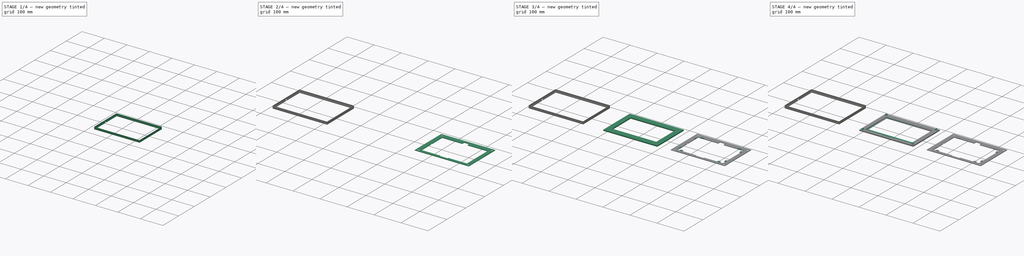
[diagram: build sequence overview — one tinted view per stage of 4, left to right]
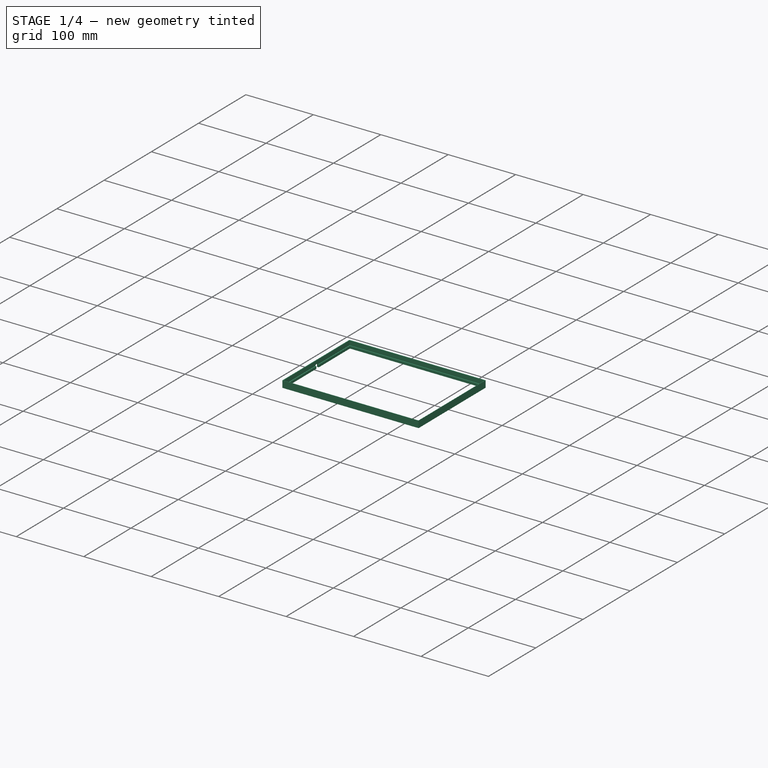
[diagram: stage 1 of 4 — iso view after this stage's code; geometry added in this stage tinted green]
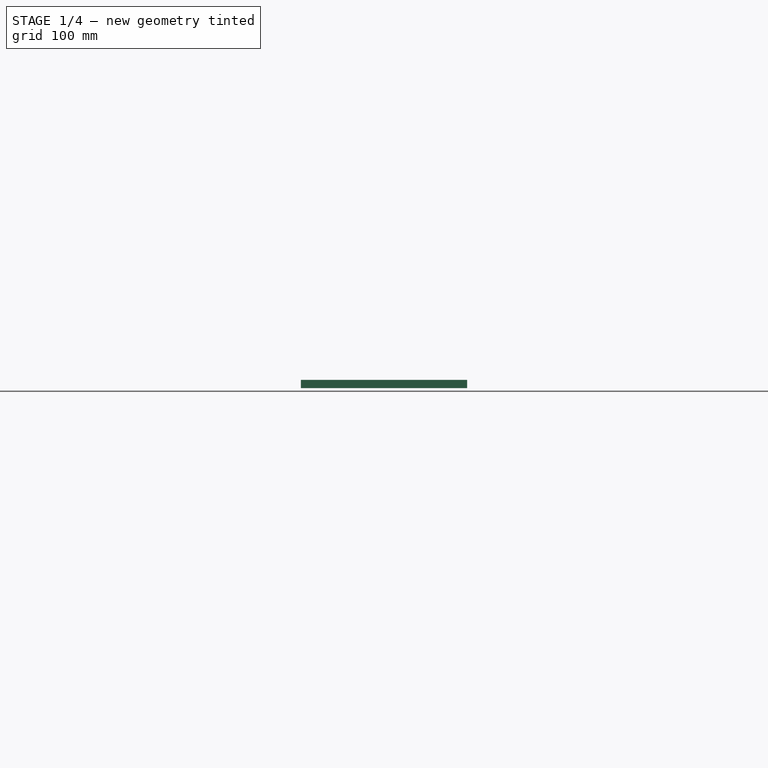
[diagram: stage 1 of 4 — front view after this stage's code; geometry added in this stage tinted green]
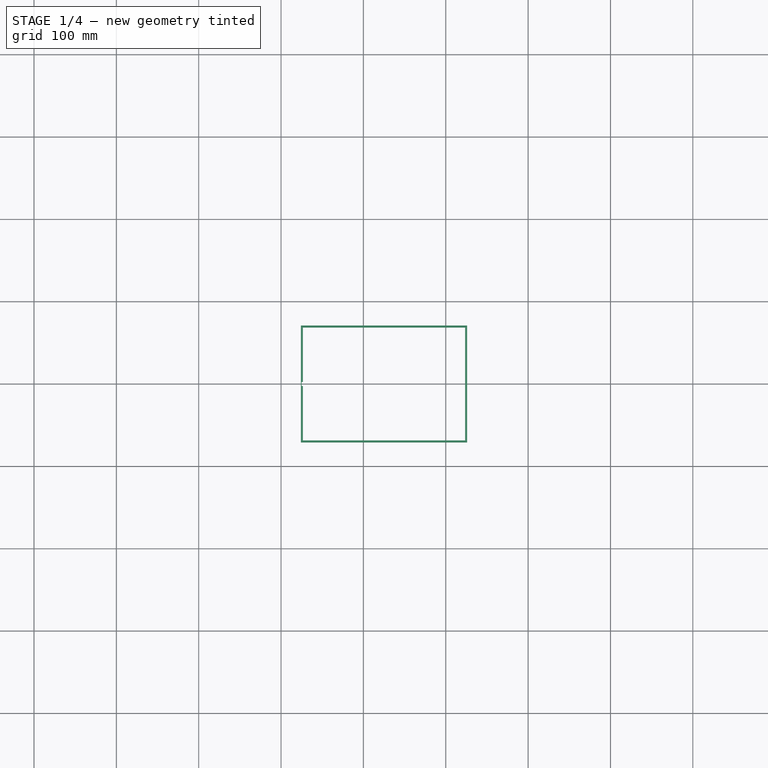
[diagram: stage 1 of 4 — top view after this stage's code; geometry added in this stage tinted green]
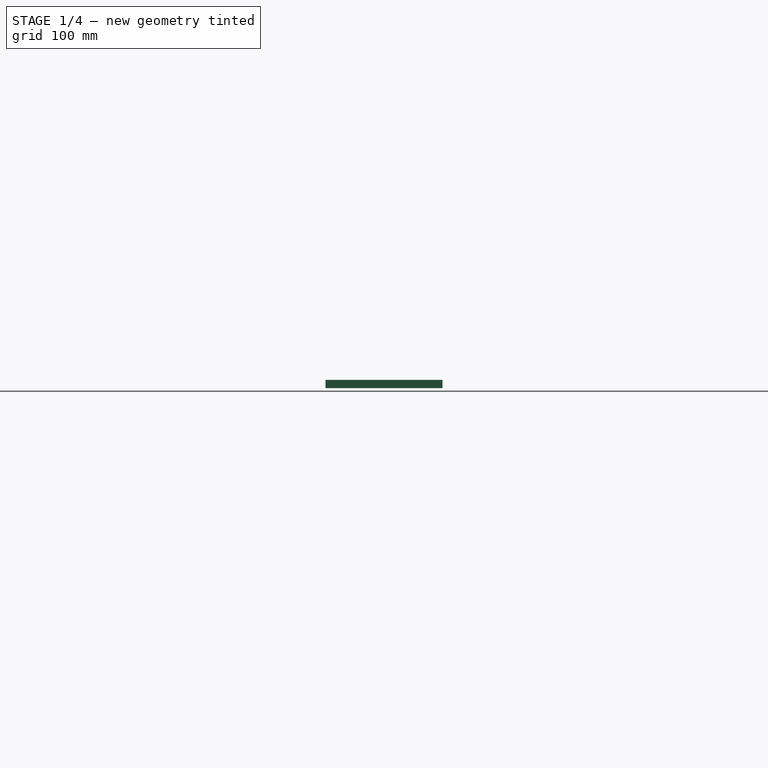
[diagram: stage 1 of 4 — right view after this stage's code; geometry added in this stage tinted green]
FCSTD DOCUMENT  (FreeCAD 1.0R39109 (Git))
Label: RevK75Bezel
License: All rights reserved
LicenseURL: https://en.wikipedia.org/wiki/All_rights_reserved
objects: Sketcher::SketchObject×10, PartDesign::Pad×5, PartDesign::Pocket×5, PartDesign::Body×3, PartDesign::Plane×1, PartDesign::Chamfer×1, PartDesign::Fillet×1
note: 60 computed .brp shape members not serialized (recipe doc carries the construction recipe); baked Part::Feature solids carry a one-line shape summary decoded from their .brp

FEATURE [PartDesign::Body] Body001  label="FrameBack"
  AllowCompound = false
  Group = -> [Sketch005,Pad002,Sketch006,Pocket001,Sketch007,Pocket002,Sketch008,Pad003,Fillet]
  Origin = -> Origin001
  Tip = -> Fillet
FEATURE [Sketcher::SketchObject] Sketch009  label="SurroundBaseS"
  ArcFitTolerance = 1e-06
  AttachmentSupport = -> [XY_Plane002]
  FullyConstrained = true
  MakeInternals = false
  MapMode = 5
  sketch-geometry (10):
    g0: LineSegment StartX=-376 StartY=71 StartZ=0 EndX=-376 EndY=-71 EndZ=0
    g1: LineSegment StartX=-376 StartY=-71 StartZ=0 EndX=-174 EndY=-71 EndZ=0
    g2: LineSegment StartX=-174 StartY=-71 StartZ=0 EndX=-174 EndY=71 EndZ=0
    g3: LineSegment StartX=-174 StartY=71 StartZ=0 EndX=-376 EndY=71 EndZ=0
    g4: GeomPoint [constr] X=-275 Y=0 Z=0
    g5: LineSegment StartX=-373.5 StartY=68.5 StartZ=0 EndX=-373.5 EndY=-68.5 EndZ=0
    g6: LineSegment StartX=-373.5 StartY=-68.5 StartZ=0 EndX=-176.5 EndY=-68.5 EndZ=0
    g7: LineSegment StartX=-176.5 StartY=-68.5 StartZ=0 EndX=-176.5 EndY=68.5 EndZ=0
    g8: LineSegment StartX=-176.5 StartY=68.5 StartZ=0 EndX=-373.5 EndY=68.5 EndZ=0
    g9: GeomPoint [constr] X=-275 Y=0 Z=0
  constraints (25):
    c: Coincident(g0,g1)
    c: Coincident(g1,g2)
    c: Coincident(g2,g3)
    c: Coincident(g3,g0)
    c: Vertical(g0)
    c: Vertical(g2)
    c: Horizontal(g1)
    c: Horizontal(g3)
    c: Symmetric(g2,g0,g4)
    c: PointOnObject(g4,g-1)
    c: DistanceX(g3,g3) = 202
    c: DistanceY(g0,g0) = 142
    c: DistanceX(g4,g-1) = 275
    c: Coincident(g5,g6)
    c: Coincident(g6,g7)
    c: Coincident(g7,g8)
    c: Coincident(g8,g5)
    c: Vertical(g5)
    c: Vertical(g7)
    c: Horizontal(g6)
    c: Horizontal(g8)
    c: Symmetric(g7,g5,g9)
    c: Coincident(g4,g9)
    c: DistanceX(g0,g5) = 2.5
    c: DistanceY(g0,g5) = -2.5
FEATURE [PartDesign::Pad] Pad004  label="SurroundBase"
  Direction = (0,0,1)
  Length = 10
  Length2 = 10
  Profile = -> Sketch009
  ReferenceAxis = -> Sketch009 [N_Axis]
  Refine = true
  Suppressed = false
  Type = 0
FEATURE [Sketcher::SketchObject] Sketch010  label="SurroundInsetS"
  ArcFitTolerance = 1e-06
  AttachmentSupport = -> [Pad004]
  ExternalGeometry = -> [Pad004]
  FullyConstrained = true
  MakeInternals = false
  MapMode = 5
  Placement = pos=(0,0,10) rot=(0,0,1;0rad)
  sketch-geometry (10):
    g0: LineSegment StartX=-375 StartY=70 StartZ=0 EndX=-375 EndY=-70.5 EndZ=0
    g1: LineSegment StartX=-375 StartY=-70.5 StartZ=0 EndX=-174.5 EndY=-70.5 EndZ=0
    g2: LineSegment StartX=-174.5 StartY=-70.5 StartZ=0 EndX=-174.5 EndY=70 EndZ=0
    g3: LineSegment StartX=-174.5 StartY=70 StartZ=0 EndX=-375 EndY=70 EndZ=0
    g4: GeomPoint [constr] X=-274.75 Y=-0.25 Z=0
    g5: LineSegment StartX=-373.5 StartY=68.5 StartZ=0 EndX=-373.5 EndY=-68.5 EndZ=0
    g6: LineSegment StartX=-373.5 StartY=-68.5 StartZ=0 EndX=-176.5 EndY=-68.5 EndZ=0
    g7: LineSegment StartX=-176.5 StartY=-68.5 StartZ=0 EndX=-176.5 EndY=68.5 EndZ=0
    g8: LineSegment StartX=-176.5 StartY=68.5 StartZ=0 EndX=-373.5 EndY=68.5 EndZ=0
    g9: GeomPoint [constr] X=-275 Y=3e-15 Z=0
  constraints (24):
    c: Coincident(g0,g1)
    c: Coincident(g1,g2)
    c: Coincident(g2,g3)
    c: Coincident(g3,g0)
    c: Vertical(g0)
    c: Vertical(g2)
    c: Horizontal(g1)
    c: Horizontal(g3)
    c: Symmetric(g2,g0,g4)
    c: Coincident(g5,g6)
    c: Coincident(g6,g7)
    c: Coincident(g7,g8)
    c: Coincident(g8,g5)
    c: Vertical(g5)
    c: Vertical(g7)
    c: Horizontal(g6)
    c: Horizontal(g8)
    c: Symmetric(g7,g5,g9)
    c: Coincident(g5,g-4)
    c: Coincident(g6,g-6)
    c: DistanceX(g5,g0) = -1.5
    c: DistanceY(g5,g0) = 1.5
    c: DistanceX(g6,g1) = 2
    c: DistanceY(g6,g1) = -2
FEATURE [PartDesign::Pocket] Pocket003  label="SurroundInset"
  BaseFeature = -> Pad004
  Direction = (0,0,-1)
  Length = 6.5
  Length2 = 5
  Profile = -> Sketch010
  ReferenceAxis = -> Sketch010 [N_Axis]
  Refine = true
  Suppressed = false
  Type = 0
FEATURE [Sketcher::SketchObject] Sketch011  label="CableHoleS"
  ArcFitTolerance = 1e-06
  AttachmentSupport = -> [Pocket003]
  ExternalGeometry = -> [Pocket003]
  FullyConstrained = true
  MakeInternals = false
  MapMode = 5
  Placement = pos=(-376,0,0) rot=(0.57735,-0.57735,-0.57735;2.0944rad)
  sketch-geometry (9):
    g0: LineSegment StartX=-2.5 StartY=3 StartZ=0 EndX=-2.5 EndY=0 EndZ=0
    g1: LineSegment StartX=-2.5 StartY=0 StartZ=0 EndX=2.5 EndY=0 EndZ=0
    g2: LineSegment StartX=2.5 StartY=0 StartZ=0 EndX=2.5 EndY=3 EndZ=0
    g3: LineSegment StartX=0.5 StartY=5 StartZ=0 EndX=-0.5 EndY=5 EndZ=0
    g4: GeomPoint [constr] X=0 Y=2.5 Z=0
    g5: ArcOfCircle CenterX=-0.5 CenterY=3 CenterZ=0 NormalX=0 NormalY=0 NormalZ=1 AngleXU=0 Radius=2 StartAngle=1.5708 EndAngle=3.14159
    g6: GeomPoint [constr] X=-2.5 Y=5 Z=0
    g7: ArcOfCircle CenterX=0.5 CenterY=3 CenterZ=0 NormalX=0 NormalY=0 NormalZ=1 AngleXU=0 Radius=2 StartAngle=1e-16 EndAngle=1.5708
    g8: GeomPoint [constr] X=2.5 Y=5 Z=0
  constraints (21):
    c: Coincident(g0,g1)
    c: Coincident(g1,g2)
    c: Vertical(g0)
    c: Vertical(g2)
    c: Horizontal(g1)
    c: Horizontal(g3)
    c: Symmetric(g2,g6,g4)
    c: PointOnObject(g4,g-2)
    c: PointOnObject(g0,g-3)
    c: Distance(g8,g6) = 5
    c: Distance(g2,g8) = 5
    c: PointOnObject(g6,g3)
    c: PointOnObject(g6,g0)
    c: Tangent(g3,g5) = -1.5708
    c: Tangent(g0,g5) = -1.5708
    c: PointOnObject(g8,g3)
    c: PointOnObject(g8,g2)
    c: Tangent(g3,g7) = -1.5708
    c: Tangent(g2,g7) = -1.5708
    c: Radius(g5) = 2
    c: Radius(g7) = 2
FEATURE [PartDesign::Pocket] Pocket004  label="CableHole"
  BaseFeature = -> Pocket003
  Direction = (1,0,0)
  Length = 5
  Length2 = 5
  Profile = -> Sketch011
  ReferenceAxis = -> Sketch011 [N_Axis]
  Refine = true
  Suppressed = false
  Type = 2
FEATURE [PartDesign::Body] Body002  label="FrameSurround"
  AllowCompound = false
  Group = -> [Sketch009,Pad004,Sketch010,Pocket003,Sketch011,Pocket004]
  Origin = -> Origin002
  Tip = -> Pocket004
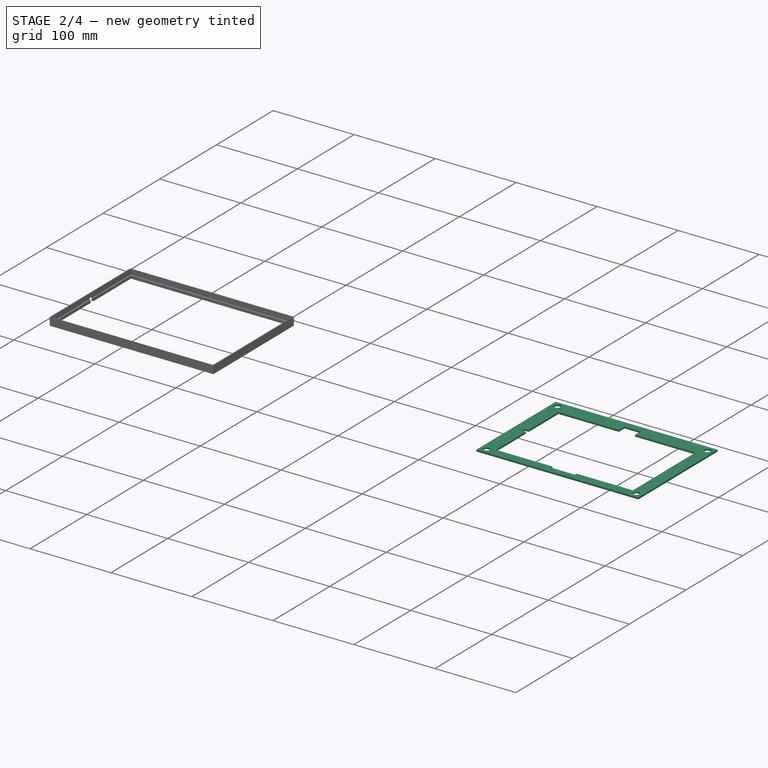
[diagram: stage 2 of 4 — iso view after this stage's code; geometry added in this stage tinted green]
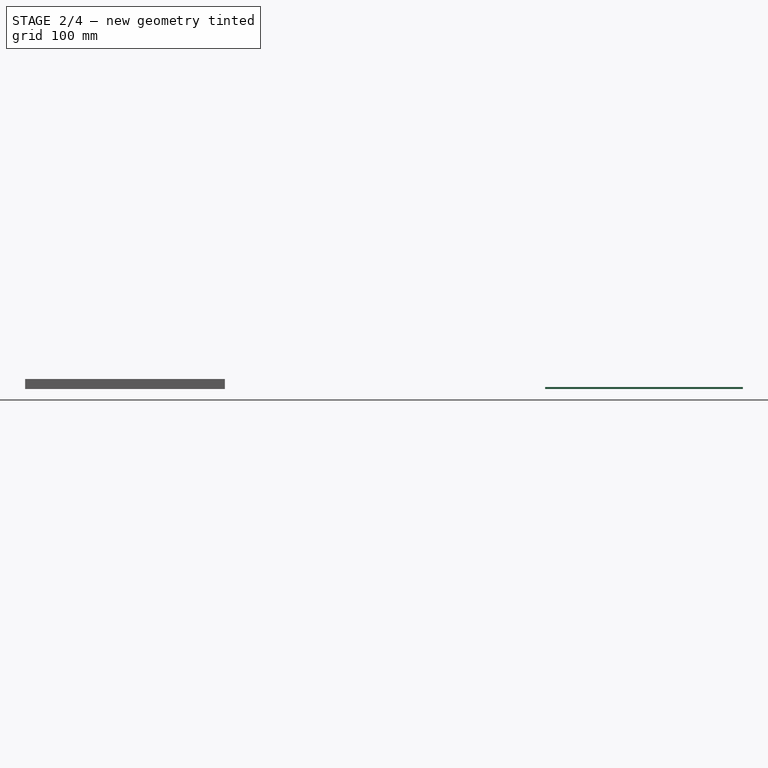
[diagram: stage 2 of 4 — front view after this stage's code; geometry added in this stage tinted green]
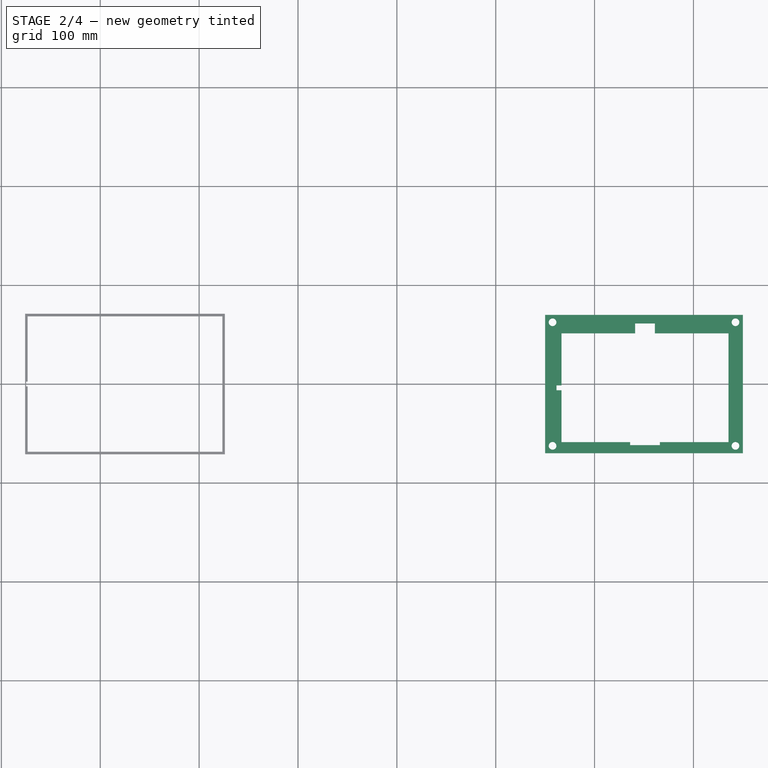
[diagram: stage 2 of 4 — top view after this stage's code; geometry added in this stage tinted green]
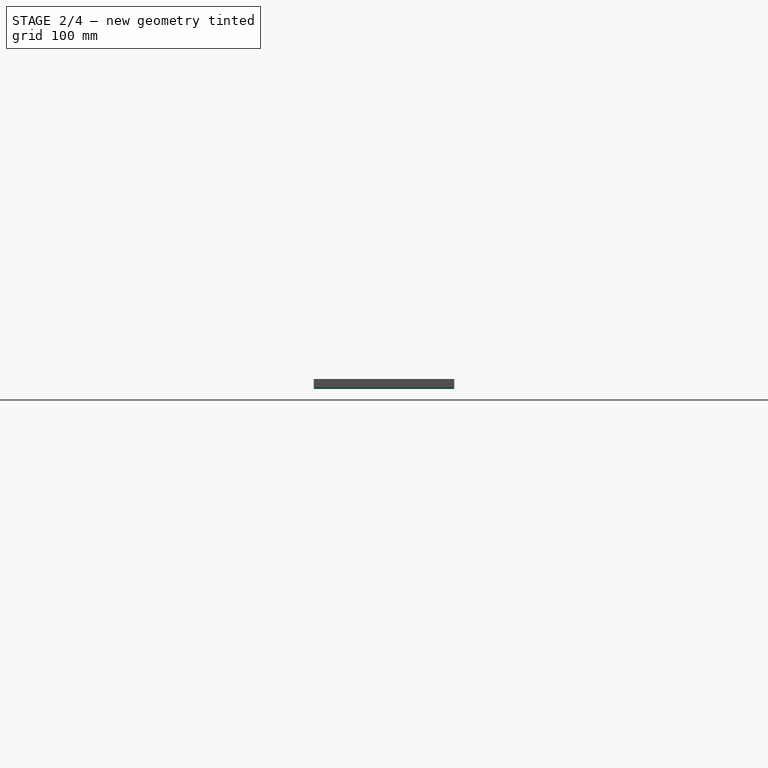
[diagram: stage 2 of 4 — right view after this stage's code; geometry added in this stage tinted green]
FEATURE [PartDesign::Body] Body  label="FrameFront"
  AllowCompound = false
  Group = -> [DatumPlane,Sketch,Pad,Sketch003,Pocket,Sketch004,Pad001,Chamfer]
  Origin = -> Origin
  Tip = -> Chamfer
FEATURE [Sketcher::SketchObject] Sketch005  label="BackBaseS"
  ArcFitTolerance = 1e-06
  AttachmentSupport = -> [XY_Plane001]
  FullyConstrained = true
  MakeInternals = false
  MapMode = 5
  sketch-geometry (5):
    g0: LineSegment StartX=150 StartY=70 StartZ=0 EndX=150 EndY=-70 EndZ=0
    g1: LineSegment StartX=150 StartY=-70 StartZ=0 EndX=350 EndY=-70 EndZ=0
    g2: LineSegment StartX=350 StartY=-70 StartZ=0 EndX=350 EndY=70 EndZ=0
    g3: LineSegment StartX=350 StartY=70 StartZ=0 EndX=150 EndY=70 EndZ=0
    g4: GeomPoint [constr] X=250 Y=0 Z=0
  constraints (13):
    c: Coincident(g0,g1)
    c: Coincident(g1,g2)
    c: Coincident(g2,g3)
    c: Coincident(g3,g0)
    c: Vertical(g0)
    c: Vertical(g2)
    c: Horizontal(g1)
    c: Horizontal(g3)
    c: Symmetric(g2,g0,g4)
    c: PointOnObject(g4,g-1)
    c: DistanceX(g3,g3) = 200
    c: DistanceY(g2,g2) = 140
    c: Distance(g4,g-2) = 250
FEATURE [PartDesign::Pad] Pad002  label="BackBase"
  Direction = (0,0,1)
  Length = 2
  Length2 = 10
  Profile = -> Sketch005
  ReferenceAxis = -> Sketch005 [N_Axis]
  Refine = true
  Suppressed = false
  Type = 0
FEATURE [Sketcher::SketchObject] Sketch006  label="ESP32RecessS"
  ArcFitTolerance = 1e-06
  AttachmentSupport = -> [Pad002]
  ExternalGeometry = -> [Pad002]
  FullyConstrained = true
  MakeInternals = false
  MapMode = 5
  Placement = pos=(0,0,2) rot=(0,0,1;0rad)
  sketch-geometry (17):
    g0: LineSegment StartX=335.5 StartY=-58.75 StartZ=0 EndX=335.5 EndY=51.25 EndZ=0
    g1: GeomPoint [constr] X=251 Y=-3.75 Z=0
    g2: LineSegment StartX=266 StartY=-58.75 StartZ=0 EndX=335.5 EndY=-58.75 EndZ=0
    g3: LineSegment StartX=166.5 StartY=-58.75 StartZ=0 EndX=236 EndY=-58.75 EndZ=0
    g4: LineSegment StartX=236 StartY=-58.75 StartZ=0 EndX=236 EndY=-61.75 EndZ=0
    g5: LineSegment StartX=236 StartY=-61.75 StartZ=0 EndX=266 EndY=-61.75 EndZ=0
    g6: LineSegment StartX=266 StartY=-61.75 StartZ=0 EndX=266 EndY=-58.75 EndZ=0
    g7: LineSegment StartX=335.5 StartY=51.25 StartZ=0 EndX=261 EndY=51.25 EndZ=0
    g8: LineSegment StartX=241 StartY=51.25 StartZ=0 EndX=166.5 EndY=51.25 EndZ=0
    g9: LineSegment StartX=241 StartY=61.25 StartZ=0 EndX=241 EndY=51.25 EndZ=0
    g10: LineSegment StartX=261 StartY=51.25 StartZ=0 EndX=261 EndY=61.25 EndZ=0
    g11: LineSegment StartX=261 StartY=61.25 StartZ=0 EndX=241 EndY=61.25 EndZ=0
    g12: LineSegment StartX=166.5 StartY=51.25 StartZ=0 EndX=166.5 EndY=-1.25 EndZ=0
    g13: LineSegment StartX=166.5 StartY=-1.25 StartZ=0 EndX=161.5 EndY=-1.25 EndZ=0
    g14: LineSegment StartX=161.5 StartY=-1.25 StartZ=0 EndX=161.5 EndY=-6.25 EndZ=0
    g15: LineSegment StartX=161.5 StartY=-6.25 StartZ=0 EndX=166.5 EndY=-6.25 EndZ=0
    g16: LineSegment StartX=166.5 StartY=-6.25 StartZ=0 EndX=166.5 EndY=-58.75 EndZ=0
  constraints (49):
    c: Coincident(g16,g3)
    c: Coincident(g2,g0)
    c: Coincident(g0,g7)
    c: Coincident(g8,g12)
    c: Vertical(g0)
    c: Symmetric(g0,g12,g1)
    c: Distance(g1,g-4) = 101
    c: Distance(g1,g-1) = 3.75
    c: DistanceY(g0,g0) = 110
    c: DistanceX(g8,g7) = 169
    c: Coincident(g6,g2)
    c: Horizontal(g2)
    c: Coincident(g3,g4)
    c: Horizontal(g3)
    c: Coincident(g4,g5)
    c: Coincident(g5,g6)
    c: Horizontal(g5)
    c: Vertical(g4)
    c: Vertical(g6)
    c: DistanceX(g5,g5) = 30
    c: Equal(g3,g2)
    c: Coincident(g7,g10)
    c: Horizontal(g7)
    c: Coincident(g9,g8)
    c: Horizontal(g8)
    c: Coincident(g11,g9)
    c: Coincident(g10,g11)
    c: Horizontal(g11)
    c: Vertical(g9)
    c: Vertical(g10)
    c: Equal(g8,g7)
    c: DistanceX(g11,g11) = 20
    c: Distance(g10,g10) = 10
    c: Distance(g6,g6) = 3
    c: DistanceY(g3,g2) = 0
    c: DistanceY(g8,g7) = 0
    c: Coincident(g12,g13)
    c: Vertical(g12)
    c: Coincident(g13,g14)
    c: Coincident(g14,g15)
    c: Vertical(g14)
    c: Coincident(g15,g16)
    c: Vertical(g16)
    c: Horizontal(g13)
    c: Horizontal(g15)
    c: Equal(g12,g16)
    c: Distance(g14,g14) = 5
    c: Distance(g15,g15) = 5
    c: DistanceX(g12,g15) = 0
FEATURE [PartDesign::Pocket] Pocket001  label="ESP32Recess"
  BaseFeature = -> Pad002
  Direction = (0,0,-1)
  Length = 5
  Length2 = 5
  Profile = -> Sketch006
  ReferenceAxis = -> Sketch006 [N_Axis]
  Refine = true
  Suppressed = false
  Type = 1
FEATURE [Sketcher::SketchObject] Sketch007  label="HolesS"
  ArcFitTolerance = 1e-06
  AttachmentSupport = -> [Pocket001]
  ExternalGeometry = -> [Pocket001]
  FullyConstrained = true
  MakeInternals = false
  MapMode = 5
  Placement = pos=(0,0,2) rot=(0,0,1;0rad)
  sketch-geometry (4):
    g0: Circle CenterX=157.5 CenterY=62.5 CenterZ=0 NormalX=0 NormalY=0 NormalZ=1 AngleXU=0 Radius=3.875
    g1: Circle CenterX=342.5 CenterY=62.5 CenterZ=0 NormalX=0 NormalY=0 NormalZ=1 AngleXU=0 Radius=3.875
    g2: Circle CenterX=342.5 CenterY=-62.5 CenterZ=0 NormalX=0 NormalY=0 NormalZ=1 AngleXU=0 Radius=3.875
    g3: Circle CenterX=157.5 CenterY=-62.5 CenterZ=0 NormalX=0 NormalY=0 NormalZ=1 AngleXU=0 Radius=3.875
  constraints (12):
    c: Diameter(g3) = 7.75
    c: Diameter(g2) = 7.75
    c: Diameter(g1) = 7.75
    c: Diameter(g0) = 7.75
    c: DistanceX(g0,g-4) = -7.5
    c: DistanceY(g0,g-4) = 7.5
    c: DistanceX(g1,g-5) = 7.5
    c: DistanceY(g1,g-5) = 7.5
    c: DistanceX(g3,g-6) = -7.5
    c: DistanceY(g3,g-6) = -7.5
    c: DistanceX(g2,g-6) = 7.5
    c: DistanceY(g2,g-6) = -7.5
FEATURE [PartDesign::Pocket] Pocket002  label="Holes"
  BaseFeature = -> Pocket001
  Direction = (0,0,-1)
  Length = 5
  Length2 = 5
  Profile = -> Sketch007
  ReferenceAxis = -> Sketch007 [N_Axis]
  Refine = true
  Suppressed = false
  Type = 1
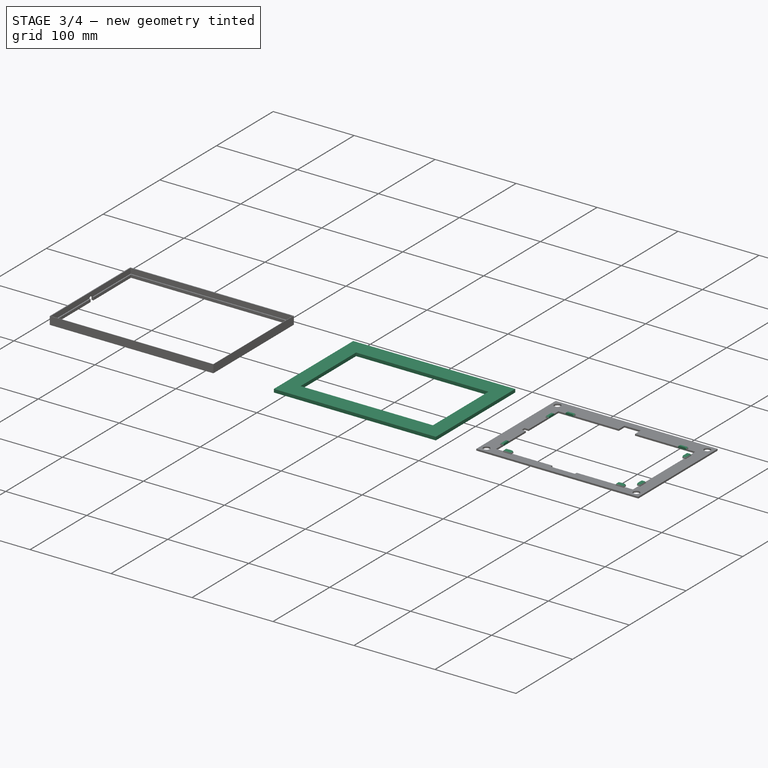
[diagram: stage 3 of 4 — iso view after this stage's code; geometry added in this stage tinted green]
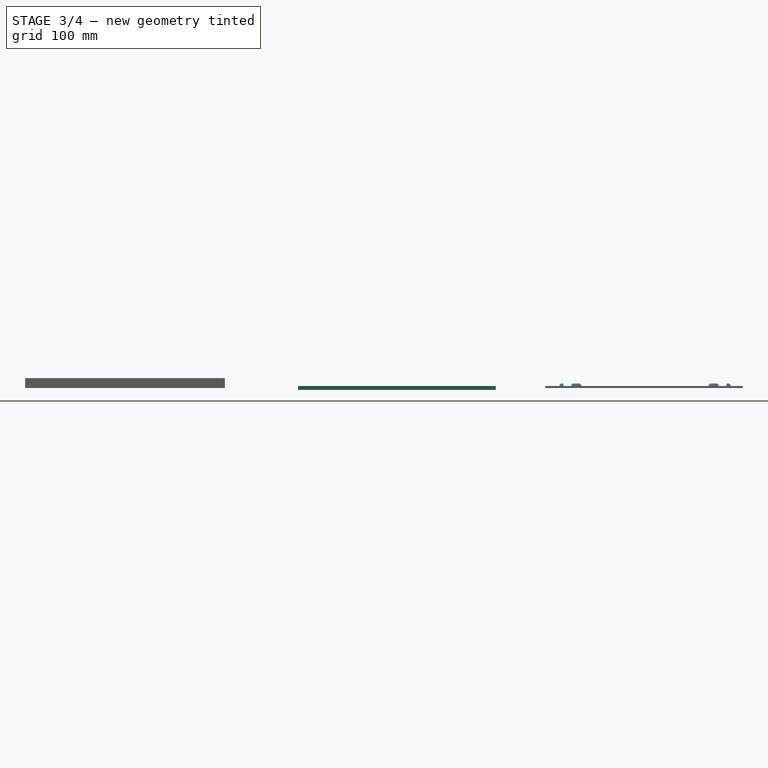
[diagram: stage 3 of 4 — front view after this stage's code; geometry added in this stage tinted green]
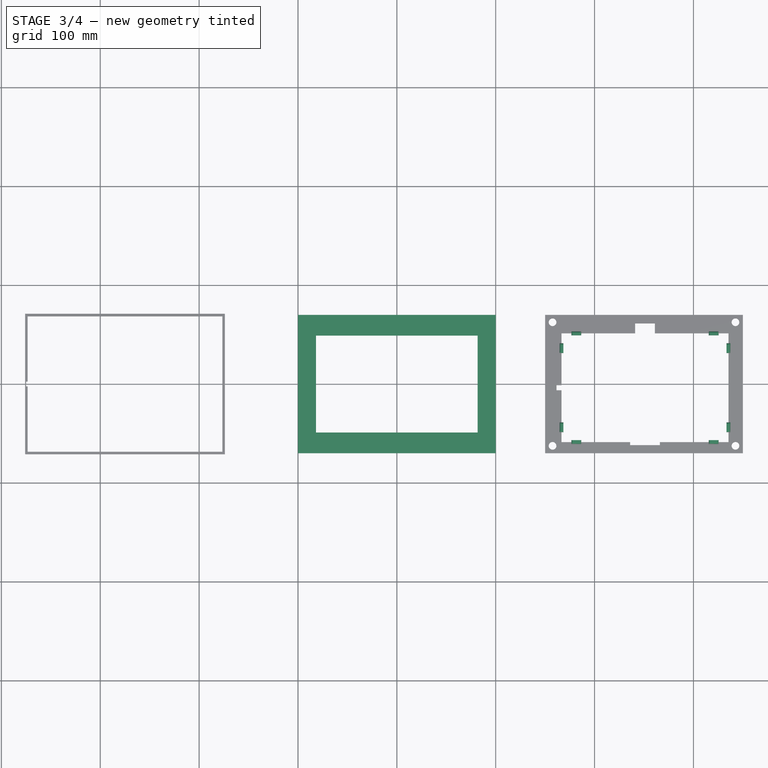
[diagram: stage 3 of 4 — top view after this stage's code; geometry added in this stage tinted green]
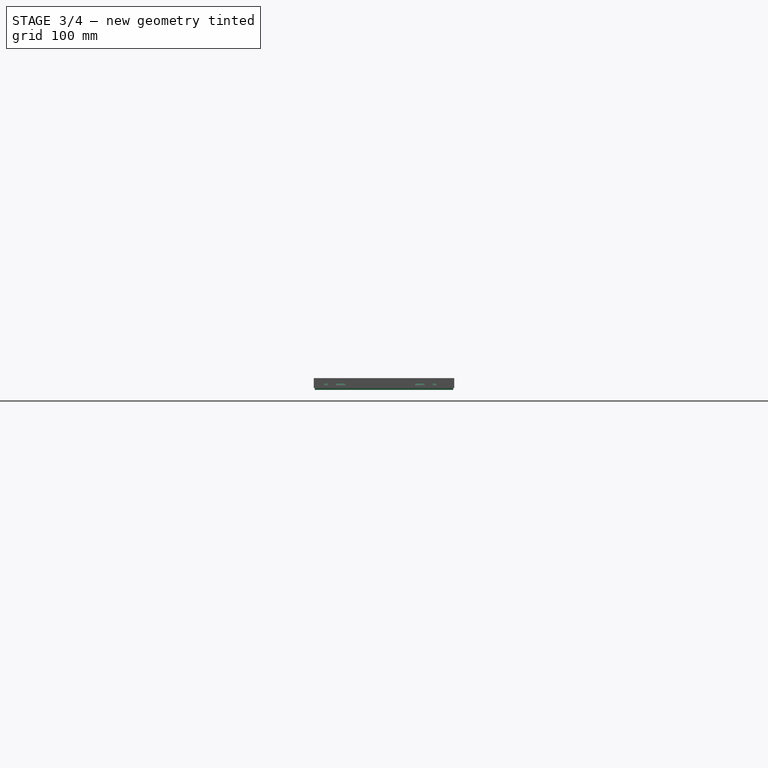
[diagram: stage 3 of 4 — right view after this stage's code; geometry added in this stage tinted green]
FEATURE [PartDesign::Plane] DatumPlane
  AttachmentSupport = -> [XY_Plane]
  Length = 233.466
  MapMode = 5
  ResizeMode = 0
  Width = 173.466
FEATURE [Sketcher::SketchObject] Sketch  label="FrontBaseS"
  ArcFitTolerance = 0
  AttachmentOffset = pos=(0,0,-2) rot=(0,0,1;0rad)
  AttachmentSupport = -> [DatumPlane]
  FullyConstrained = true
  MakeInternals = false
  MapMode = 5
  Placement = pos=(0,0,-2) rot=(0,0,1;0rad)
  sketch-geometry (10):
    g0: LineSegment StartX=-100 StartY=-70 StartZ=0 EndX=-100 EndY=70 EndZ=0
    g1: LineSegment StartX=-100 StartY=70 StartZ=0 EndX=100 EndY=70 EndZ=0
    g2: LineSegment StartX=100 StartY=70 StartZ=0 EndX=100 EndY=-70 EndZ=0
    g3: LineSegment StartX=100 StartY=-70 StartZ=0 EndX=-100 EndY=-70 EndZ=0
    g4: GeomPoint [constr] X=0 Y=0 Z=0
    g5: LineSegment StartX=-81.75 StartY=-49 StartZ=0 EndX=-81.75 EndY=49 EndZ=0
    g6: LineSegment StartX=-81.75 StartY=49 StartZ=0 EndX=81.75 EndY=49 EndZ=0
    g7: LineSegment StartX=81.75 StartY=49 StartZ=0 EndX=81.75 EndY=-49 EndZ=0
    g8: LineSegment StartX=81.75 StartY=-49 StartZ=0 EndX=-81.75 EndY=-49 EndZ=0
    g9: GeomPoint [constr] X=0 Y=0 Z=0
  constraints (24):
    c: Coincident(g0,g1)
    c: Coincident(g1,g2)
    c: Coincident(g2,g3)
    c: Coincident(g3,g0)
    c: Horizontal(g1)
    c: Horizontal(g3)
    c: Vertical(g0)
    c: Vertical(g2)
    c: Symmetric(g1,g0,g4)
    c: Coincident(g4,g-1)
    c: DistanceY(g0,g0) = 140  'Frame Height'
    c: DistanceX(g1,g1) = 200  'Frame Width'
    c: Coincident(g5,g6)
    c: Coincident(g6,g7)
    c: Coincident(g7,g8)
    c: Coincident(g8,g5)
    c: Horizontal(g6)
    c: Horizontal(g8)
    c: Vertical(g5)
    c: Vertical(g7)
    c: Symmetric(g6,g5,g9)
    c: Coincident(g9,g4)
    c: DistanceX(g6,g6) = 163.5  'OpeningWidth'
    c: DistanceY(g5,g5) = 98  'OpeningHeight'
FEATURE [PartDesign::Pad] Pad  label="FrontBase"
  Direction = (0,0,1)
  Length = 4
  Length2 = 10
  Profile = -> Sketch
  ReferenceAxis = -> Sketch [N_Axis]
  Suppressed = false
  Type = 0
FEATURE [Sketcher::SketchObject] Sketch008  label="HooksS"
  ArcFitTolerance = 1e-06
  AttachmentSupport = -> [Pocket002]
  ExternalGeometry = -> [Pocket002]
  FullyConstrained = true
  MakeInternals = false
  MapMode = 5
  Placement = pos=(0,0,2) rot=(0,0,1;0rad)
  sketch-geometry (40):
    g0: LineSegment StartX=176.5 StartY=53.25 StartZ=0 EndX=176.5 EndY=49.25 EndZ=0
    g1: LineSegment StartX=176.5 StartY=49.25 StartZ=0 EndX=186.5 EndY=49.25 EndZ=0
    g2: LineSegment StartX=186.5 StartY=49.25 StartZ=0 EndX=186.5 EndY=53.25 EndZ=0
    g3: LineSegment StartX=186.5 StartY=53.25 StartZ=0 EndX=176.5 EndY=53.25 EndZ=0
    g4: GeomPoint [constr] X=181.5 Y=51.25 Z=0
    g5: LineSegment StartX=164.5 StartY=41.25 StartZ=0 EndX=164.5 EndY=31.25 EndZ=0
    g6: LineSegment StartX=164.5 StartY=31.25 StartZ=0 EndX=168.5 EndY=31.25 EndZ=0
    g7: LineSegment StartX=168.5 StartY=31.25 StartZ=0 EndX=168.5 EndY=41.25 EndZ=0
    g8: LineSegment StartX=168.5 StartY=41.25 StartZ=0 EndX=164.5 EndY=41.25 EndZ=0
    g9: GeomPoint [constr] X=166.5 Y=36.25 Z=0
    g10: LineSegment StartX=164.5 StartY=-38.75 StartZ=0 EndX=164.5 EndY=-48.75 EndZ=0
    g11: LineSegment StartX=164.5 StartY=-48.75 StartZ=0 EndX=168.5 EndY=-48.75 EndZ=0
    g12: LineSegment StartX=168.5 StartY=-48.75 StartZ=0 EndX=168.5 EndY=-38.75 EndZ=0
    g13: LineSegment StartX=168.5 StartY=-38.75 StartZ=0 EndX=164.5 EndY=-38.75 EndZ=0
    g14: GeomPoint [constr] X=166.5 Y=-43.75 Z=0
    g15: LineSegment StartX=176.5 StartY=-56.75 StartZ=0 EndX=176.5 EndY=-60.75 EndZ=0
    g16: LineSegment StartX=176.5 StartY=-60.75 StartZ=0 EndX=186.5 EndY=-60.75 EndZ=0
    g17: LineSegment StartX=186.5 StartY=-60.75 StartZ=0 EndX=186.5 EndY=-56.75 EndZ=0
    g18: LineSegment StartX=186.5 StartY=-56.75 StartZ=0 EndX=176.5 EndY=-56.75 EndZ=0
    g19: GeomPoint [constr] X=181.5 Y=-58.75 Z=0
    g20: LineSegment StartX=315.5 StartY=-56.75 StartZ=0 EndX=315.5 EndY=-60.75 EndZ=0
    g21: LineSegment StartX=315.5 StartY=-60.75 StartZ=0 EndX=325.5 EndY=-60.75 EndZ=0
    g22: LineSegment StartX=325.5 StartY=-60.75 StartZ=0 EndX=325.5 EndY=-56.75 EndZ=0
    g23: LineSegment StartX=325.5 StartY=-56.75 StartZ=0 EndX=315.5 EndY=-56.75 EndZ=0
    g24: GeomPoint [constr] X=320.5 Y=-58.75 Z=0
    g25: LineSegment StartX=333.5 StartY=-38.75 StartZ=0 EndX=333.5 EndY=-48.75 EndZ=0
    g26: LineSegment StartX=333.5 StartY=-48.75 StartZ=0 EndX=337.5 EndY=-48.75 EndZ=0
    g27: LineSegment StartX=337.5 StartY=-48.75 StartZ=0 EndX=337.5 EndY=-38.75 EndZ=0
    g28: LineSegment StartX=337.5 StartY=-38.75 StartZ=0 EndX=333.5 EndY=-38.75 EndZ=0
    g29: GeomPoint [constr] X=335.5 Y=-43.75 Z=0
    g30: LineSegment StartX=333.5 StartY=41.25 StartZ=0 EndX=333.5 EndY=31.25 EndZ=0
    g31: LineSegment StartX=333.5 StartY=31.25 StartZ=0 EndX=337.5 EndY=31.25 EndZ=0
    g32: LineSegment StartX=337.5 StartY=31.25 StartZ=0 EndX=337.5 EndY=41.25 EndZ=0
    g33: LineSegment StartX=337.5 StartY=41.25 StartZ=0 EndX=333.5 EndY=41.25 EndZ=0
    g34: GeomPoint [constr] X=335.5 Y=36.25 Z=0
    g35: LineSegment StartX=315.5 StartY=53.25 StartZ=0 EndX=315.5 EndY=49.25 EndZ=0
    g36: LineSegment StartX=315.5 StartY=49.25 StartZ=0 EndX=325.5 EndY=49.25 EndZ=0
    g37: LineSegment StartX=325.5 StartY=49.25 StartZ=0 EndX=325.5 EndY=53.25 EndZ=0
    g38: LineSegment StartX=325.5 StartY=53.25 StartZ=0 EndX=315.5 EndY=53.25 EndZ=0
    g39: GeomPoint [constr] X=320.5 Y=51.25 Z=0
  constraints (104):
    c: Coincident(g0,g1)
    c: Coincident(g1,g2)
    c: Coincident(g2,g3)
    c: Coincident(g3,g0)
    c: Vertical(g0)
    c: Vertical(g2)
    c: Horizontal(g1)
    c: Horizontal(g3)
    c: Symmetric(g2,g0,g4)
    c: Coincident(g5,g6)
    c: Coincident(g6,g7)
    c: Coincident(g7,g8)
    c: Coincident(g8,g5)
    c: Vertical(g5)
    c: Vertical(g7)
    c: Horizontal(g6)
    c: Horizontal(g8)
    c: Symmetric(g7,g5,g9)
    c: Coincident(g10,g11)
    c: Coincident(g11,g12)
    c: Coincident(g12,g13)
    c: Coincident(g13,g10)
    c: Vertical(g10)
    c: Vertical(g12)
    c: Horizontal(g11)
    c: Horizontal(g13)
    c: Symmetric(g12,g10,g14)
    c: Coincident(g15,g16)
    c: Coincident(g16,g17)
    c: Coincident(g17,g18)
    c: Coincident(g18,g15)
    c: Vertical(g15)
    c: Vertical(g17)
    c: Horizontal(g16)
    c: Horizontal(g18)
    c: Symmetric(g17,g15,g19)
    c: Coincident(g20,g21)
    c: Coincident(g21,g22)
    c: Coincident(g22,g23)
    c: Coincident(g23,g20)
    c: Vertical(g20)
    c: Vertical(g22)
    c: Horizontal(g21)
    c: Horizontal(g23)
    c: Symmetric(g22,g20,g24)
    c: Coincident(g25,g26)
    c: Coincident(g26,g27)
    c: Coincident(g27,g28)
    c: Coincident(g28,g25)
    c: Vertical(g25)
    c: Vertical(g27)
    c: Horizontal(g26)
    c: Horizontal(g28)
    c: Symmetric(g27,g25,g29)
    c: Coincident(g30,g31)
    c: Coincident(g31,g32)
    c: Coincident(g32,g33)
    c: Coincident(g33,g30)
    c: Vertical(g30)
    c: Vertical(g32)
    c: Horizontal(g31)
    c: Horizontal(g33)
    c: Symmetric(g32,g30,g34)
    c: Coincident(g35,g36)
    c: Coincident(g36,g37)
    c: Coincident(g37,g38)
    c: Coincident(g38,g35)
    c: Vertical(g35)
    c: Vertical(g37)
    c: Horizontal(g36)
    c: Horizontal(g38)
    c: Symmetric(g37,g35,g39)
    c: DistanceX(g3,g3) = 10
    c: DistanceY(g5,g5) = 10
    c: DistanceY(g10,g10) = 10
    c: DistanceX(g16,g16) = 10
    c: DistanceX(g21,g21) = 10
    c: DistanceY(g27,g27) = 10
    c: DistanceY(g32,g32) = 10
    c: DistanceX(g38,g38) = 10
    c: Distance(g35,g35) = 4
    c: Distance(g31,g31) = 4
    c: Distance(g28,g28) = 4
    c: Distance(g20,g20) = 4
    c: Distance(g17,g17) = 4
    c: Distance(g13,g13) = 4
    c: Distance(g6,g6) = 4
    c: Distance(g2,g2) = 4
    c: Distance(g24,g-3) = 15
    c: Distance(g39,g-3) = 15
    c: PointOnObject(g34,g-3)
    c: PointOnObject(g29,g-3)
    c: PointOnObject(g19,g-6)
    c: PointOnObject(g24,g-7)
    c: PointOnObject(g4,g-4)
    c: PointOnObject(g39,g-5)
    c: DistanceY(g34,g-5) = 15
    c: DistanceY(g9,g-4) = 15
    c: DistanceY(g-6,g14) = 15
    c: DistanceY(g-7,g29) = 15
    c: PointOnObject(g9,g-8)
    c: PointOnObject(g14,g-9)
    c: DistanceX(g-9,g19) = 15
    c: DistanceX(g-8,g4) = 15
FEATURE [PartDesign::Pad] Pad003  label="Hooks"
  BaseFeature = -> Pocket002
  Direction = (0,0,1)
  Length = 2.5
  Length2 = 10
  Profile = -> Sketch008
  ReferenceAxis = -> Sketch008 [N_Axis]
  Refine = true
  Suppressed = false
  Type = 0
FEATURE [PartDesign::Fillet] Fillet
  Base = -> Pad003 [Edge145,Edge148,Edge143,Edge139,Edge136,Edge134,Edge130,Edge127,Edge125,Edge121,Edge118,Edge116,Edge184,Edge181,Edge179,Edge175,Edge172,Edge170,Edge166,Edge163,Edge161,Edge157,Edge154,Edge152]
  BaseFeature = -> Pad003
  Radius = 2
  Refine = true
  SupportTransform = false
  Suppressed = false
  UseAllEdges = false
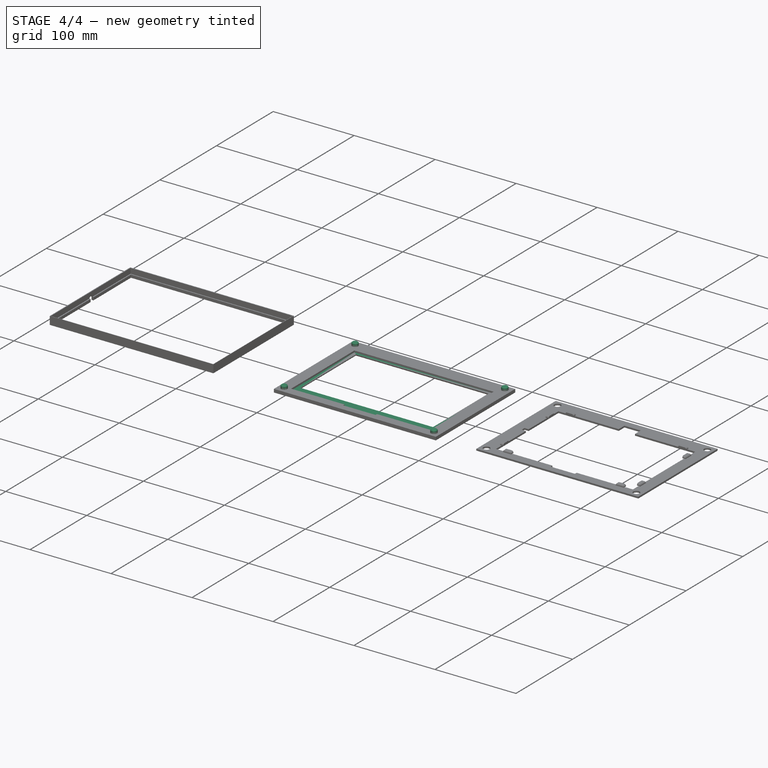
[diagram: stage 4 of 4 — iso view after this stage's code; geometry added in this stage tinted green]
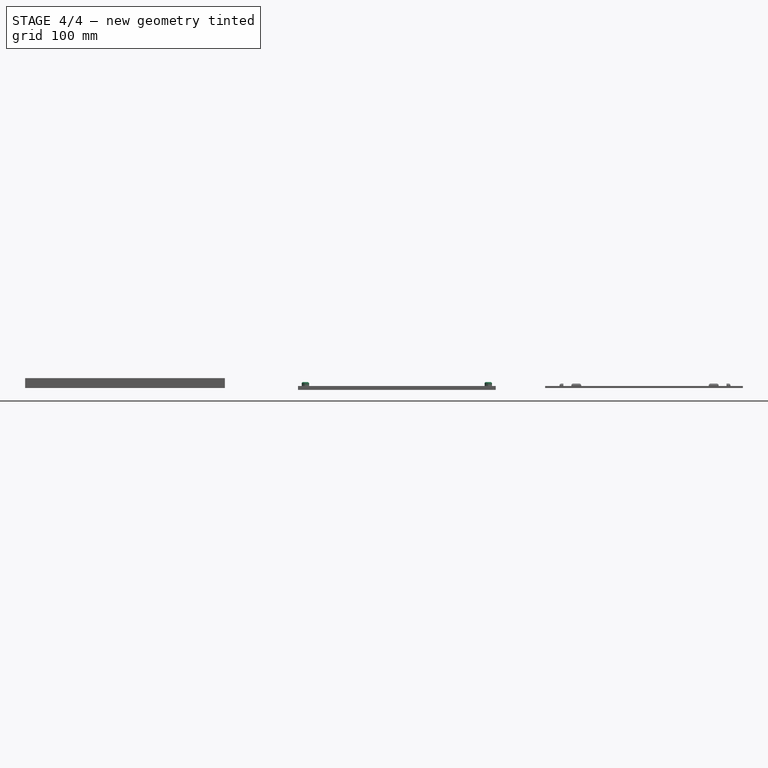
[diagram: stage 4 of 4 — front view after this stage's code; geometry added in this stage tinted green]
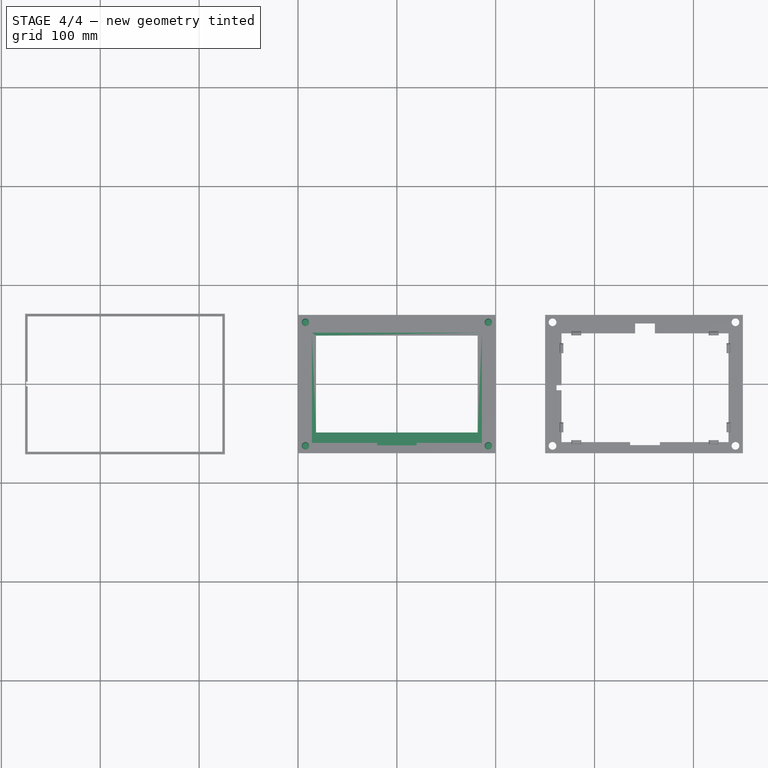
[diagram: stage 4 of 4 — top view after this stage's code; geometry added in this stage tinted green]
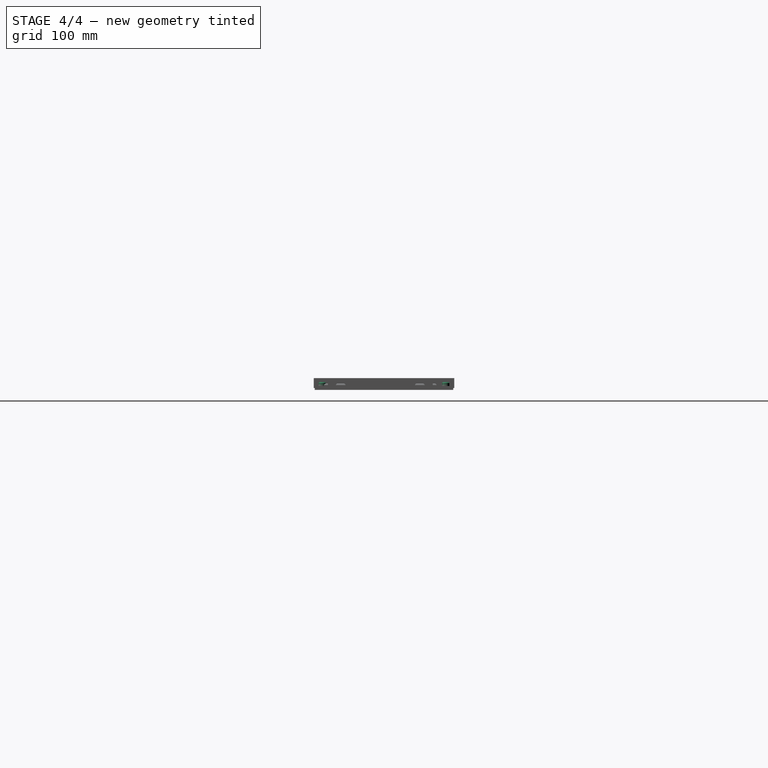
[diagram: stage 4 of 4 — right view after this stage's code; geometry added in this stage tinted green]
FEATURE [Sketcher::SketchObject] Sketch003  label="DisplayRecessS"
  ArcFitTolerance = 0
  AttachmentSupport = -> [Pad]
  FullyConstrained = true
  MakeInternals = false
  MapMode = 5
  Placement = pos=(0,0,2) rot=(0,0,1;0rad)
  sketch-geometry (9):
    g0: LineSegment StartX=-86 StartY=52 StartZ=0 EndX=-86 EndY=-59.5 EndZ=0
    g1: LineSegment StartX=86 StartY=-59.5 StartZ=0 EndX=86 EndY=52 EndZ=0
    g2: LineSegment StartX=86 StartY=52 StartZ=0 EndX=-86 EndY=52 EndZ=0
    g3: GeomPoint [constr] X=0 Y=-3.75 Z=0
    g4: LineSegment StartX=20 StartY=-59.5 StartZ=0 EndX=86 EndY=-59.5 EndZ=0
    g5: LineSegment StartX=-86 StartY=-59.5 StartZ=0 EndX=-20 EndY=-59.5 EndZ=0
    g6: LineSegment StartX=-20 StartY=-59.5 StartZ=0 EndX=-20 EndY=-62 EndZ=0
    g7: LineSegment StartX=-20 StartY=-62 StartZ=0 EndX=20 EndY=-62 EndZ=0
    g8: LineSegment StartX=20 StartY=-62 StartZ=0 EndX=20 EndY=-59.5 EndZ=0
  constraints (25):
    c: Coincident(g0,g5)
    c: Coincident(g4,g1)
    c: Coincident(g1,g2)
    c: Coincident(g2,g0)
    c: Horizontal(g2)
    c: Vertical(g0)
    c: Vertical(g1)
    c: Symmetric(g4,g0,g3)
    c: DistanceX(g2,g2) = 172  'RecessWidth'
    c: DistanceY(g0,g0) = 111.5  'RecessHeight'
    c: DistanceX(g-1,g3) = 0  'RecessXOffset'
    c: DistanceY(g-1,g3) = -3.75  'RecessYOffset'
    c: Coincident(g8,g4)
    c: Horizontal(g4)
    c: Coincident(g5,g6)
    c: Horizontal(g5)
    c: DistanceX(g6,g8) = 40
    c: Distance(g5,g-2) = 20
    c: Coincident(g6,g7)
    c: Coincident(g7,g8)
    c: Horizontal(g7)
    c: Vertical(g6)
    c: Vertical(g8)
    c: DistanceY(g8,g8) = 2.5
    c: DistanceY(g4,g5) = 0
FEATURE [PartDesign::Pocket] Pocket  label="DisplayRecess"
  BaseFeature = -> Pad
  Direction = (0,0,-1)
  Length = 2
  Length2 = 5
  Profile = -> Sketch003
  ReferenceAxis = -> Sketch003 [N_Axis]
  Refine = true
  Suppressed = false
  Type = 0
FEATURE [Sketcher::SketchObject] Sketch004  label="PegsS"
  ArcFitTolerance = 1e-06
  AttachmentSupport = -> [Pocket]
  ExternalGeometry = -> [Pocket]
  FullyConstrained = true
  MakeInternals = false
  MapMode = 5
  Placement = pos=(0,0,2) rot=(0,0,1;0rad)
  sketch-geometry (4):
    g0: Circle CenterX=-92.5 CenterY=62.5 CenterZ=0 NormalX=0 NormalY=0 NormalZ=1 AngleXU=0 Radius=3.75
    g1: Circle CenterX=92.5 CenterY=62.5 CenterZ=0 NormalX=0 NormalY=0 NormalZ=1 AngleXU=0 Radius=3.75
    g2: Circle CenterX=92.5 CenterY=-62.5 CenterZ=0 NormalX=0 NormalY=0 NormalZ=1 AngleXU=0 Radius=3.75
    g3: Circle CenterX=-92.5 CenterY=-62.5 CenterZ=0 NormalX=0 NormalY=0 NormalZ=1 AngleXU=0 Radius=3.75
  constraints (12):
    c: DistanceX(g-5,g3) = 7.5
    c: DistanceY(g-5,g3) = 7.5
    c: Diameter(g3) = 7.5
    c: DistanceX(g2,g-6) = 7.5
    c: DistanceY(g2,g-6) = -7.5
    c: Diameter(g2) = 7.5
    c: Diameter(g0) = 7.5
    c: Diameter(g1) = 7.5
    c: DistanceX(g0,g-4) = -7.5
    c: DistanceY(g0,g-4) = 7.5
    c: DistanceX(g1,g-6) = 7.5
    c: DistanceY(g1,g-6) = 7.5
FEATURE [PartDesign::Pad] Pad001  label="Pegs"
  BaseFeature = -> Pocket
  Direction = (0,0,1)
  Length = 4
  Length2 = 10
  Profile = -> Sketch004
  ReferenceAxis = -> Sketch004 [N_Axis]
  Refine = true
  Suppressed = false
  Type = 0
FEATURE [PartDesign::Chamfer] Chamfer
  Angle = 45
  Base = -> Pad001 [Edge13,Edge12,Edge14,Edge15,Edge58,Edge38,Edge40,Edge60]
  BaseFeature = -> Pad001
  ChamferType = 0
  FlipDirection = false
  Refine = true
  Size = 1
  Size2 = 1
  SupportTransform = false
  Suppressed = false
  UseAllEdges = false
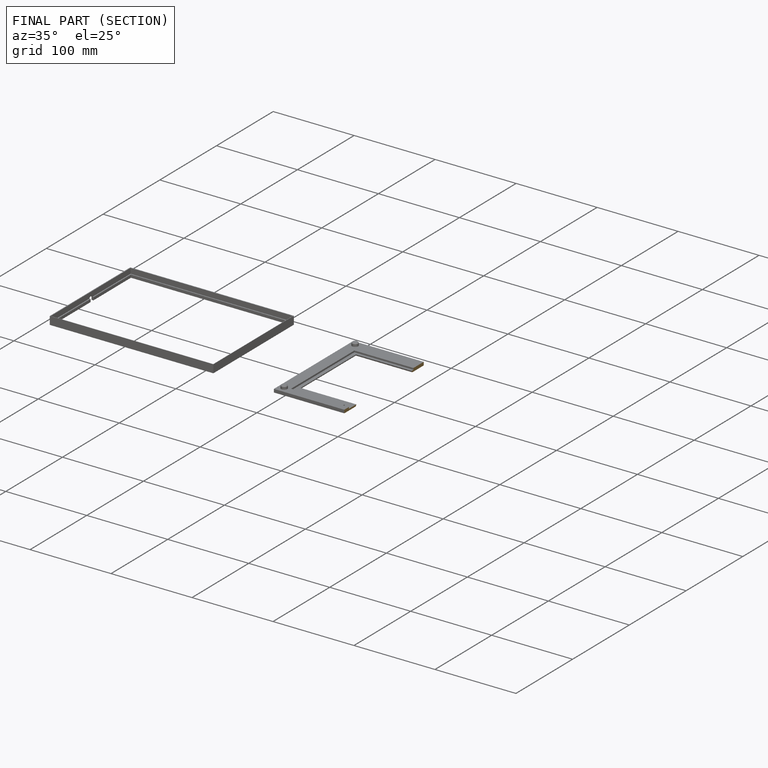
[diagram: finished part — half-section view (interior)]
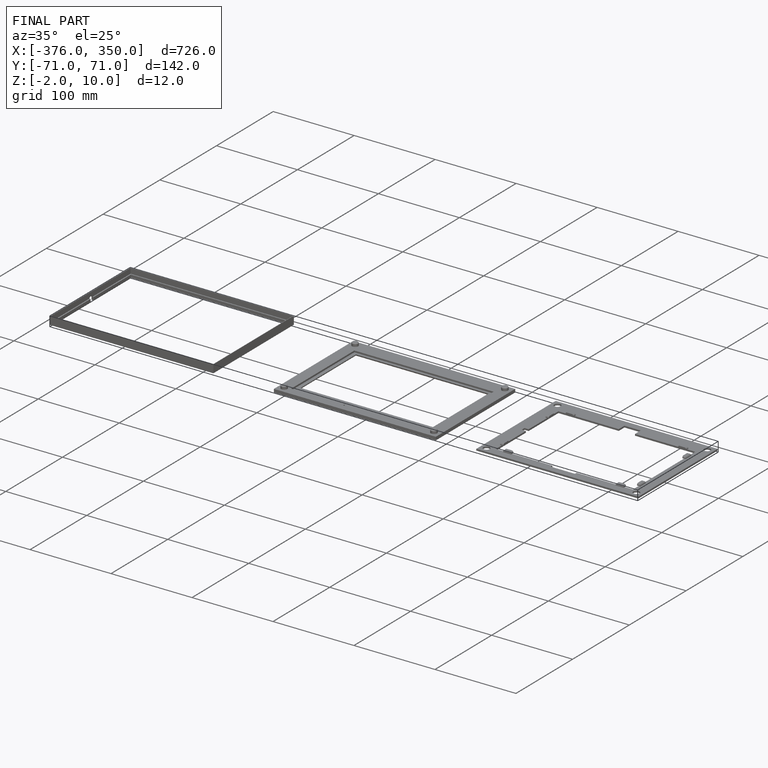
[diagram: finished part — iso view with bounding-box wireframe]
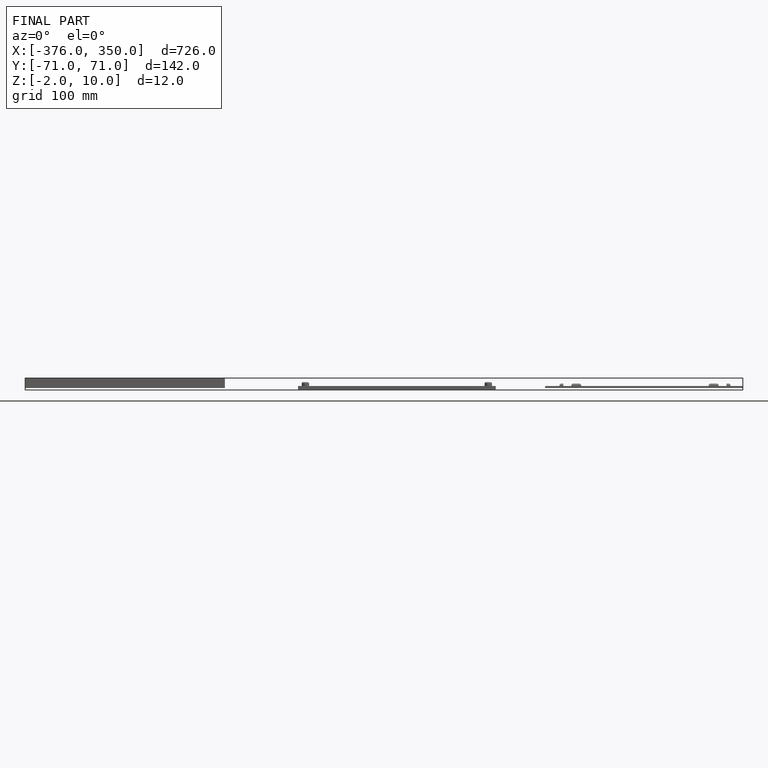
[diagram: finished part — front view with bounding-box wireframe]
